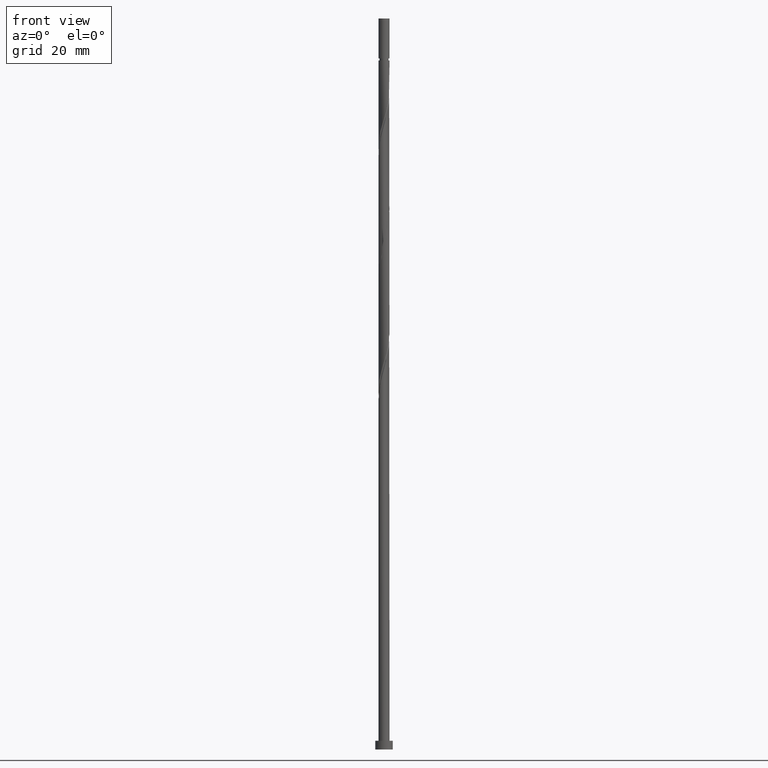
[diagram: clean part render]
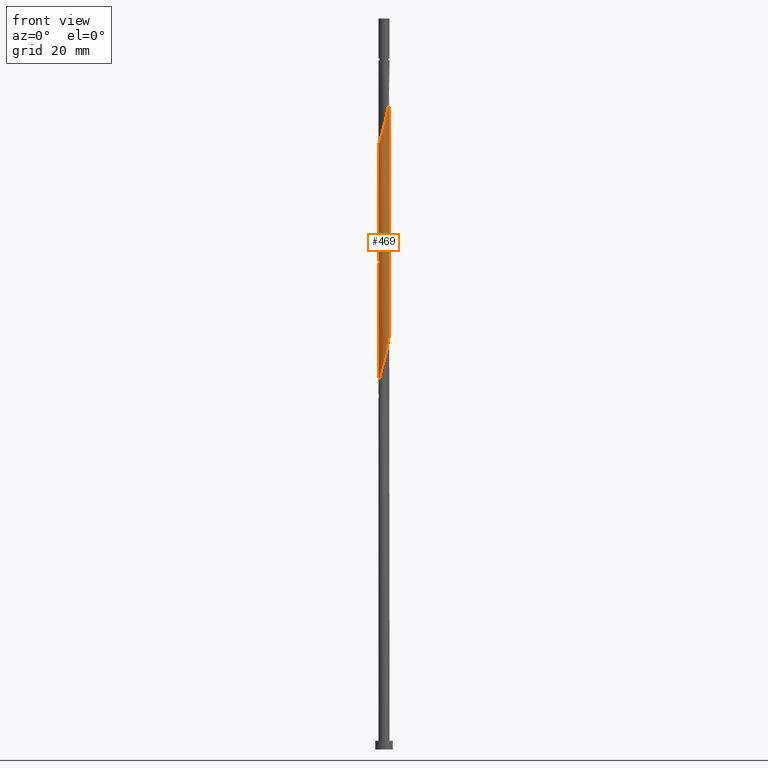
[diagram: same view with one face highlighted and labeled with its STEP entity id]
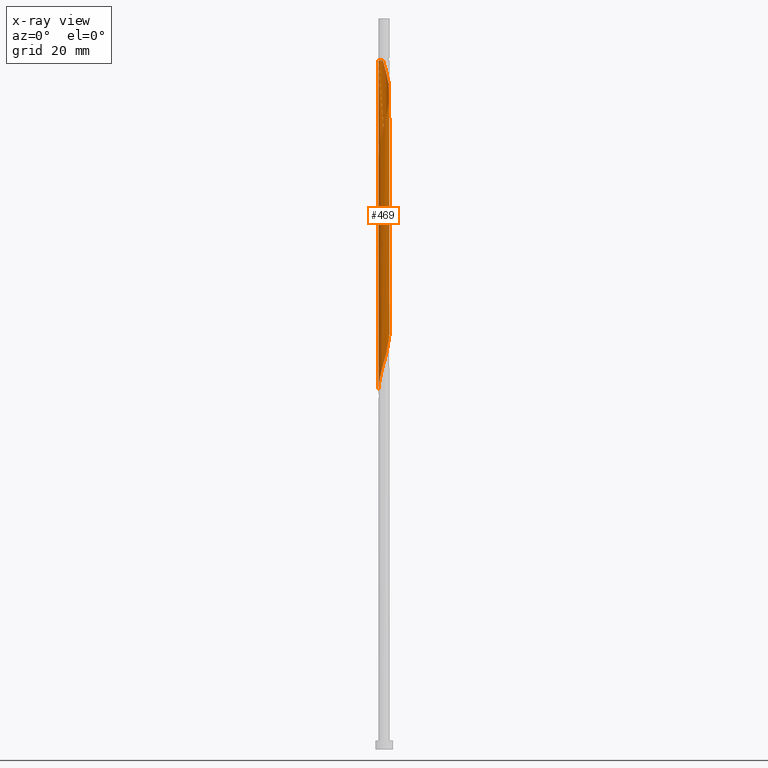
[diagram: x-ray of the same camera — body ghosted, the highlighted face saturated]
A machine part, front view. The second image highlights one B-rep face of the part: STEP entity #469.
The next image is the same camera in x-ray: the body ghosted, the highlighted face saturated — about 0% of this face is hidden behind the body in this view.
In plain terms, the highlighted cylindrical surface (bore or boss wall) has radius 0.95 mm, axis along (-0, -0, -1).
Its self-contained STEP definition (entity closure, byte-faithful):
#6 = CARTESIAN_POINT ( 'NONE',  ( -0.5311792622899487171, 0.8018655580792057869, 78.74737604286052317 ) ) ;
#14 = CARTESIAN_POINT ( 'NONE',  ( 0.9500000000000009548, 0.05412505057411599180, 92.62252290687140999 ) ) ;
#26 = CARTESIAN_POINT ( 'NONE',  ( -0.9310000000000014930, 0.1890476130502582175, 102.1848760428604947 ) ) ;
#31 = CARTESIAN_POINT ( 'NONE',  ( -0.8643142206951131001, -0.3942853381806154522, 62.60154270952718036 ) ) ;
#42 = CARTESIAN_POINT ( 'NONE',  ( -0.3942853381806156743, -0.8643142206951132112, 105.3098760428605374 ) ) ;
#48 = ORIENTED_EDGE ( 'NONE', *, *, #453, .F. ) ;
#74 =( BOUNDED_CURVE ( )  B_SPLINE_CURVE ( 2, ( #668, #1440, #433, #318, #550, #1085, #943, #1147, #42, #145, #477, #1377, #1385, #373, #920, #743, #468, #911, #502, #1368, #1057, #961, #357, #162, #801, #262, #382, #1256, #245, #1048, #827, #414, #582 ),
 .UNSPECIFIED., .F., .T. ) 
 B_SPLINE_CURVE_WITH_KNOTS ( ( 3, 2, 2, 2, 2, 2, 2, 2, 2, 2, 2, 2, 2, 2, 2, 2, 3 ),
 ( 0.5545322023138553602, 0.5625000000000000000, 0.5749999999999999556, 0.5875000000000000222, 0.5999999999999999778, 0.6125000000000000444, 0.6250000000000000000, 0.6374999999999999556, 0.6500000000000000222, 0.6624999999999999778, 0.6750000000000000444, 0.6875000000000000000, 0.6999999999999999556, 0.7125000000000000222, 0.7249999999999999778, 0.7375000000000000444, 0.7500000000000000000 ),
 .UNSPECIFIED. ) 
 CURVE ( )  GEOMETRIC_REPRESENTATION_ITEM ( )  RATIONAL_B_SPLINE_CURVE ( ( 0.9039174447099483922, 0.9019565955404780233, 0.9090909090909261581, 0.8978984914501423331, 0.9090909090909261581, 0.8978984914501423331, 0.9090909090909261581, 0.8978984914501423331, 0.9090909090909261581, 0.8978984914501423331, 0.9090909090909261581, 0.8978984914501423331, 0.9090909090909261581, 0.8978984914501423331, 0.9090909090909261581, 0.8978984914501423331, 0.9090909090909261581, 0.8978984914501423331, 0.9090909090909261581, 0.8978984914501423331, 0.9090909090909261581, 0.8978984914501423331, 0.9090909090909261581, 0.8978984914501423331, 0.9090909090909261581, 0.8978984914501423331, 0.9090909090909261581, 0.8978984914501423331, 0.9090909090909261581, 0.8978984914501423331, 0.9090909090909261581, 0.8978984914501423331, 0.9090909090909261581 ) ) 
 REPRESENTATION_ITEM ( '' )  );
#81 = EDGE_CURVE ( 'NONE', #728, #312, #327, .T. ) ;
#105 = CARTESIAN_POINT ( 'NONE',  ( 0.3942853381806154522, -0.8643142206951131001, 88.64320937619385177 ) ) ;
#107 = VECTOR ( 'NONE', #175, 1000.000000000000000 ) ;
#117 = CARTESIAN_POINT ( 'NONE',  ( -0.9609422003876559870, 0.04159169910811459647, 81.87237604286050896 ) ) ;
#120 = CARTESIAN_POINT ( 'NONE',  ( -0.9438525418493384223, -0.1078998574815838302, 82.39320937619389440 ) ) ;
#123 = VECTOR ( 'NONE', #816, 1000.000000000000000 ) ;
#142 = CARTESIAN_POINT ( 'NONE',  ( -0.9267628833110201914, -0.2573914140712821874, 62.08070937619381624 ) ) ;
#145 = CARTESIAN_POINT ( 'NONE',  ( -0.2573914140712822984, -0.9267628833110200803, 105.8307093761938518 ) ) ;
#146 = EDGE_CURVE ( 'NONE', #1086, #312, #74, .T. ) ;
#160 = CARTESIAN_POINT ( 'NONE',  ( 0.000000000000000000, 0.000000000000000000, 125.0000000000000000 ) ) ;
#162 = CARTESIAN_POINT ( 'NONE',  ( 0.9010577996123467770, 0.3365035269924014361, 113.1223760428605090 ) ) ;
#166 = CARTESIAN_POINT ( 'NONE',  ( 0.7529715833721342122, -0.5984760450967367973, 69.37237604286049475 ) ) ;
#175 = DIRECTION ( 'NONE',  ( -0.000000000000000000, -0.000000000000000000, -1.000000000000000000 ) ) ;
#193 = ORIENTED_EDGE ( 'NONE', *, *, #146, .F. ) ;
#211 = CARTESIAN_POINT ( 'NONE',  ( -0.8018655580792057869, -0.5311792622899486060, 83.95570937619383756 ) ) ;
#215 = LINE ( 'NONE', #455, #798 ) ;
#217 = EDGE_LOOP ( 'NONE', ( #303, #1340, #193, #435, #763, #1038, #951, #48 ) ) ;
#222 = CARTESIAN_POINT ( 'NONE',  ( 0.1890476130502582730, 0.9310000000000014930, 76.14320937619386598 ) ) ;
#242 = CARTESIAN_POINT ( 'NONE',  ( 0.9438525418493384223, 0.1078998574815837469, 71.97654270952720879 ) ) ;
#245 = CARTESIAN_POINT ( 'NONE',  ( 0.3942853381806157853, 0.8643142206951133222, 115.7265427095272088 ) ) ;
#250 = CARTESIAN_POINT ( 'NONE',  ( -0.8018655580792057869, -0.5311792622899486060, 63.12237604286050185 ) ) ;
#262 = CARTESIAN_POINT ( 'NONE',  ( 0.7529715833721343232, 0.5984760450967365752, 114.1640427095271662 ) ) ;
#268 = DIRECTION ( 'NONE',  ( -1.000000000000000000, 0.000000000000000000, 0.000000000000000000 ) ) ;
#274 = LINE ( 'NONE', #466, #123 ) ;
#303 = ORIENTED_EDGE ( 'NONE', *, *, #1061, .F. ) ;
#305 = CARTESIAN_POINT ( 'NONE',  ( 0.9499999999999999556, 1.163414459189985682E-16, 125.0000000000000000 ) ) ;
#312 = VERTEX_POINT ( 'NONE', #723 ) ;
#318 = CARTESIAN_POINT ( 'NONE',  ( -0.9010577996123467770, -0.3365035269924014916, 102.7057093761938518 ) ) ;
#322 = CARTESIAN_POINT ( 'NONE',  ( 0.5311792622899484950, -0.8018655580792058979, 89.16404270952715194 ) ) ;
#327 = CIRCLE ( 'NONE', #843, 0.9499999999999975131 ) ;
#329 = DIRECTION ( 'NONE',  ( -0.000000000000000000, -0.000000000000000000, -1.000000000000000000 ) ) ;
#336 = CARTESIAN_POINT ( 'NONE',  ( -0.2573914140712821874, 0.9267628833110201914, 77.70570937619383756 ) ) ;
#354 =( BOUNDED_CURVE ( )  B_SPLINE_CURVE ( 2, ( #903, #1014, #887, #772, #899, #465, #1357, #322, #105, #1224, #1109, #1350, #1129, #554, #656, #786, #567, #211, #998, #1338, #120, #117, #1230, #664, #1242, #1116, #560, #6, #1344, #336, #782, #1237, #222, #671, #1009, #714, #813, #1252, #908, #1052, #242, #806, #699, #603, #1382, #166, #610, #1364, #1152, #692, #1261, #1143, #378, #924, #364, #720, #1174, #250, #31, #142, #587, #1039, #916 ),
 .UNSPECIFIED., .F., .T. ) 
 B_SPLINE_CURVE_WITH_KNOTS ( ( 3, 2, 2, 2, 2, 2, 2, 2, 2, 2, 2, 2, 2, 2, 2, 2, 2, 2, 2, 2, 2, 2, 2, 2, 2, 2, 2, 2, 2, 2, 2, 3 ),
 ( 0.5545322023138548051, 0.5625000000000000000, 0.5749999999999999556, 0.5875000000000000222, 0.5999999999999999778, 0.6125000000000000444, 0.6250000000000000000, 0.6374999999999999556, 0.6500000000000000222, 0.6624999999999999778, 0.6750000000000000444, 0.6875000000000000000, 0.6999999999999999556, 0.7125000000000000222, 0.7249999999999999778, 0.7375000000000000444, 0.7500000000000000000, 0.7624999999999999556, 0.7750000000000000222, 0.7874999999999999778, 0.8000000000000000444, 0.8125000000000000000, 0.8249999999999999556, 0.8375000000000000222, 0.8499999999999999778, 0.8625000000000000444, 0.8750000000000000000, 0.8874999999999999556, 0.8999999999999999112, 0.9124999999999999778, 0.9250000000000000444, 0.9295322023138553602 ),
 .UNSPECIFIED. ) 
 CURVE ( )  GEOMETRIC_REPRESENTATION_ITEM ( )  RATIONAL_B_SPLINE_CURVE ( ( 0.9039174447099487253, 0.9019565955404774682, 0.9090909090909261581, 0.8978984914501423331, 0.9090909090909261581, 0.8978984914501423331, 0.9090909090909261581, 0.8978984914501423331, 0.9090909090909261581, 0.8978984914501423331, 0.9090909090909261581, 0.8978984914501423331, 0.9090909090909261581, 0.8978984914501423331, 0.9090909090909261581, 0.8978984914501423331, 0.9090909090909261581, 0.8978984914501423331, 0.9090909090909261581, 0.8978984914501423331, 0.9090909090909261581, 0.8978984914501423331, 0.9090909090909261581, 0.8978984914501423331, 0.9090909090909261581, 0.8978984914501423331, 0.9090909090909261581, 0.8978984914501423331, 0.9090909090909261581, 0.8978984914501423331, 0.9090909090909261581, 0.8978984914501423331, 0.9090909090909261581, 0.8978984914501423331, 0.9090909090909261581, 0.8978984914501423331, 0.9090909090909261581, 0.8978984914501423331, 0.9090909090909261581, 0.8978984914501423331, 0.9090909090909261581, 0.8978984914501423331, 0.9090909090909261581, 0.8978984914501423331, 0.9090909090909261581, 0.8978984914501423331, 0.9090909090909261581, 0.8978984914501423331, 0.9090909090909261581, 0.8978984914501423331, 0.9090909090909261581, 0.8978984914501423331, 0.9090909090909261581, 0.8978984914501423331, 0.9090909090909261581, 0.8978984914501423331, 0.9090909090909261581, 0.8978984914501423331, 0.9090909090909261581, 0.8978984914501423331, 0.9090909090909261581, 0.9050328050005904679, 0.9039174447099483922 ) ) 
 REPRESENTATION_ITEM ( '' )  );
#357 = CARTESIAN_POINT ( 'NONE',  ( 0.9310000000000014930, 0.1890476130502579399, 112.6015427095271946 ) ) ;
#364 = CARTESIAN_POINT ( 'NONE',  ( -0.4674897860445692555, -0.8270146914922408277, 64.68487604286050896 ) ) ;
#373 = CARTESIAN_POINT ( 'NONE',  ( 0.3365035269924014361, -0.9010577996123467770, 107.9140427095271662 ) ) ;
#378 = CARTESIAN_POINT ( 'NONE',  ( -0.1890476130502582175, -0.9310000000000014930, 65.72654270952715194 ) ) ;
#382 = CARTESIAN_POINT ( 'NONE',  ( 0.6420754228310419087, 0.7001708015879714031, 114.6848760428605232 ) ) ;
#414 = CARTESIAN_POINT ( 'NONE',  ( -0.04159169910811427728, 0.9609422003876559870, 117.2890427095271662 ) ) ;
#433 = CARTESIAN_POINT ( 'NONE',  ( -0.9310000000000014930, -0.1890476130502580510, 102.1848760428604947 ) ) ;
#435 = ORIENTED_EDGE ( 'NONE', *, *, #667, .T. ) ;
#453 = EDGE_CURVE ( 'NONE', #1367, #1093, #1266, .T. ) ;
#455 = CARTESIAN_POINT ( 'NONE',  ( -0.9499999999999999556, 0.000000000000000000, 125.0000000000000000 ) ) ;
#465 = CARTESIAN_POINT ( 'NONE',  ( 0.7529715833721342122, -0.5984760450967367973, 90.20570937619383756 ) ) ;
#466 = CARTESIAN_POINT ( 'NONE',  ( -0.9499999999999999556, 0.000000000000000000, 125.0000000000000000 ) ) ;
#468 = CARTESIAN_POINT ( 'NONE',  ( 0.7001708015879714031, -0.6420754228310416867, 109.4765427095271946 ) ) ;
#469 = ADVANCED_FACE ( 'NONE', ( #1175 ), #1090, .T. ) ;
#477 = CARTESIAN_POINT ( 'NONE',  ( -0.1078998574815840522, -0.9438525418493384223, 106.3515427095271946 ) ) ;
#483 = DIRECTION ( 'NONE',  ( -0.000000000000000000, -0.000000000000000000, -1.000000000000000000 ) ) ;
#491 = LINE ( 'NONE', #305, #107 ) ;
#502 = CARTESIAN_POINT ( 'NONE',  ( 0.8643142206951132112, -0.3942853381806156743, 110.5182093761938518 ) ) ;
#522 = CARTESIAN_POINT ( 'NONE',  ( 0.04159169910811453402, 0.9609422003876559870, 97.49737604286049475 ) ) ;
#533 = VERTEX_POINT ( 'NONE', #1145 ) ;
#549 = CARTESIAN_POINT ( 'NONE',  ( -0.9500000000000013989, 5.622413543702093402E-16, 102.8496784843307950 ) ) ;
#550 = CARTESIAN_POINT ( 'NONE',  ( -0.8270146914922410497, -0.4674897860445691444, 103.2265427095271946 ) ) ;
#554 = CARTESIAN_POINT ( 'NONE',  ( -0.3365035269924016581, -0.9010577996123465550, 86.03904270952716615 ) ) ;
#560 = CARTESIAN_POINT ( 'NONE',  ( -0.6420754228310416867, 0.7001708015879715141, 79.26820937619383756 ) ) ;
#567 = CARTESIAN_POINT ( 'NONE',  ( -0.7001708015879715141, -0.6420754228310415757, 84.47654270952720879 ) ) ;
#582 = CARTESIAN_POINT ( 'NONE',  ( -0.1890476130502573016, 0.9309999999999966080, 117.8098760428604947 ) ) ;
#583 = CARTESIAN_POINT ( 'NONE',  ( -0.7529715833721342122, 0.5984760450967366863, 100.6223760428604805 ) ) ;
#587 = CARTESIAN_POINT ( 'NONE',  ( -0.9438525418493384223, -0.1078998574815838302, 61.55987604286051607 ) ) ;
#597 = CARTESIAN_POINT ( 'NONE',  ( 0.5984760450967367973, 0.7529715833721342122, 95.41404270952715194 ) ) ;
#603 = CARTESIAN_POINT ( 'NONE',  ( 0.9010577996123465550, -0.3365035269924016581, 70.41404270952718036 ) ) ;
#607 = CARTESIAN_POINT ( 'NONE',  ( 0.9438525418493384223, 0.1078998574815837469, 92.80987604286052317 ) ) ;
#610 = CARTESIAN_POINT ( 'NONE',  ( 0.6420754228310415757, -0.7001708015879715141, 68.85154270952720879 ) ) ;
#656 = CARTESIAN_POINT ( 'NONE',  ( -0.4674897860445692555, -0.8270146914922408277, 85.51820937619385177 ) ) ;
#658 = CARTESIAN_POINT ( 'NONE',  ( 0.000000000000000000, 0.000000000000000000, 117.8098760428604947 ) ) ;
#663 = CARTESIAN_POINT ( 'NONE',  ( -0.3942853381806155633, 0.8643142206951131001, 99.05987604286053738 ) ) ;
#664 = CARTESIAN_POINT ( 'NONE',  ( -0.9010577996123466660, 0.3365035269924016026, 80.83070937619382335 ) ) ;
#667 = EDGE_CURVE ( 'NONE', #1086, #533, #274, .T. ) ;
#668 = CARTESIAN_POINT ( 'NONE',  ( -0.9500000000000013989, -4.347999807129618746E-16, 101.5200736013902372 ) ) ;
#671 = CARTESIAN_POINT ( 'NONE',  ( 0.3365035269924017136, 0.9010577996123465550, 75.62237604286049475 ) ) ;
#675 = CARTESIAN_POINT ( 'NONE',  ( 0.9500000000000016209, -1.146972362915227141E-15, 92.43301181766410934 ) ) ;
#680 = DIRECTION ( 'NONE',  ( -0.000000000000000000, -0.000000000000000000, -1.000000000000000000 ) ) ;
#692 = CARTESIAN_POINT ( 'NONE',  ( 0.2573914140712821319, -0.9267628833110201914, 67.28904270952716615 ) ) ;
#699 = CARTESIAN_POINT ( 'NONE',  ( 0.9310000000000014930, -0.1890476130502582452, 70.93487604286052317 ) ) ;
#714 = CARTESIAN_POINT ( 'NONE',  ( 0.5984760450967367973, 0.7529715833721342122, 74.58070937619386598 ) ) ;
#720 = CARTESIAN_POINT ( 'NONE',  ( -0.5984760450967367973, -0.7529715833721342122, 64.16404270952716615 ) ) ;
#723 = CARTESIAN_POINT ( 'NONE',  ( -0.1890476130502573016, 0.9309999999999966080, 117.8098760428604947 ) ) ;
#728 = VERTEX_POINT ( 'NONE', #825 ) ;
#743 = CARTESIAN_POINT ( 'NONE',  ( 0.5984760450967365752, -0.7529715833721342122, 108.9557093761938518 ) ) ;
#754 = CARTESIAN_POINT ( 'NONE',  ( 0.1890476130502582730, 0.9310000000000014930, 96.97654270952718036 ) ) ;
#763 = ORIENTED_EDGE ( 'NONE', *, *, #1103, .F. ) ;
#772 = CARTESIAN_POINT ( 'NONE',  ( 0.9010577996123465550, -0.3365035269924016581, 91.24737604286048054 ) ) ;
#776 = CARTESIAN_POINT ( 'NONE',  ( -0.9500000000000013989, -4.347999807129618746E-16, 101.5200736013902514 ) ) ;
#781 = CARTESIAN_POINT ( 'NONE',  ( -0.2573914140712821874, 0.9267628833110201914, 98.53904270952715194 ) ) ;
#782 = CARTESIAN_POINT ( 'NONE',  ( -0.1078998574815839273, 0.9438525418493383112, 77.18487604286053738 ) ) ;
#786 = CARTESIAN_POINT ( 'NONE',  ( -0.5984760450967367973, -0.7529715833721342122, 84.99737604286049475 ) ) ;
#796 = CARTESIAN_POINT ( 'NONE',  ( -0.5311792622899487171, 0.8018655580792057869, 99.58070937619382335 ) ) ;
#798 = VECTOR ( 'NONE', #329, 1000.000000000000000 ) ;
#801 = CARTESIAN_POINT ( 'NONE',  ( 0.8270146914922410497, 0.4674897860445690334, 113.6432093761938944 ) ) ;
#806 = CARTESIAN_POINT ( 'NONE',  ( 0.9609422003876559870, -0.04159169910811470056, 71.45570937619382335 ) ) ;
#813 = CARTESIAN_POINT ( 'NONE',  ( 0.7001708015879715141, 0.6420754228310415757, 74.05987604286053738 ) ) ;
#816 = DIRECTION ( 'NONE',  ( -0.000000000000000000, -0.000000000000000000, -1.000000000000000000 ) ) ;
#825 = CARTESIAN_POINT ( 'NONE',  ( -0.9499999999999975131, 0.000000000000000000, 117.8098760428604947 ) ) ;
#827 = CARTESIAN_POINT ( 'NONE',  ( 0.1078998574815841355, 0.9438525418493384223, 116.7682093761938660 ) ) ;
#843 = AXIS2_PLACEMENT_3D ( 'NONE', #658, #680, #1233 ) ;
#887 = CARTESIAN_POINT ( 'NONE',  ( 0.9310000000000014930, -0.1890476130502582452, 91.76820937619382335 ) ) ;
#899 = CARTESIAN_POINT ( 'NONE',  ( 0.8270146914922408277, -0.4674897860445692555, 90.72654270952718036 ) ) ;
#903 = CARTESIAN_POINT ( 'NONE',  ( 0.9500000000000016209, -1.146972362915227141E-15, 92.43301181766409513 ) ) ;
#908 = CARTESIAN_POINT ( 'NONE',  ( 0.8643142206951132112, 0.3942853381806152302, 73.01820937619382335 ) ) ;
#911 = CARTESIAN_POINT ( 'NONE',  ( 0.8018655580792057869, -0.5311792622899488281, 109.9973760428604947 ) ) ;
#912 = CARTESIAN_POINT ( 'NONE',  ( -0.9010577996123466660, 0.3365035269924016026, 101.6640427095271662 ) ) ;
#916 = CARTESIAN_POINT ( 'NONE',  ( -0.9500000000000016209, 1.049517194824390742E-15, 61.18301181766409513 ) ) ;
#920 = CARTESIAN_POINT ( 'NONE',  ( 0.4674897860445690889, -0.8270146914922410497, 108.4348760428605516 ) ) ;
#924 = CARTESIAN_POINT ( 'NONE',  ( -0.3365035269924016581, -0.9010577996123465550, 65.20570937619382335 ) ) ;
#943 = CARTESIAN_POINT ( 'NONE',  ( -0.6420754228310416867, -0.7001708015879714031, 104.2682093761938518 ) ) ;
#951 = ORIENTED_EDGE ( 'NONE', *, *, #971, .T. ) ;
#960 = CARTESIAN_POINT ( 'NONE',  ( -0.9500000000000013989, 5.622413543702093402E-16, 102.8496784843307807 ) ) ;
#961 = CARTESIAN_POINT ( 'NONE',  ( 0.9609422003876559870, 0.04159169910811433279, 112.0807093761938233 ) ) ;
#971 = EDGE_CURVE ( 'NONE', #986, #1093, #491, .T. ) ;
#973 = CARTESIAN_POINT ( 'NONE',  ( 0.9267628833110203024, 0.2573914140712820764, 93.33070937619383756 ) ) ;
#981 = CARTESIAN_POINT ( 'NONE',  ( 0.9499999999999999556, 1.163414459189985682E-16, 117.8098760428604947 ) ) ;
#986 = VERTEX_POINT ( 'NONE', #981 ) ;
#998 = CARTESIAN_POINT ( 'NONE',  ( -0.8643142206951131001, -0.3942853381806154522, 83.43487604286053738 ) ) ;
#1008 = CARTESIAN_POINT ( 'NONE',  ( -0.1078998574815839273, 0.9438525418493383112, 98.01820937619388019 ) ) ;
#1009 = CARTESIAN_POINT ( 'NONE',  ( 0.4674897860445693110, 0.8270146914922408277, 75.10154270952715194 ) ) ;
#1014 = CARTESIAN_POINT ( 'NONE',  ( 0.9500000000000022871, -0.09547859244962067504, 92.09870724225625338 ) ) ;
#1023 = CARTESIAN_POINT ( 'NONE',  ( -0.9500000000000015099, 0.09547859244962560166, 102.5153739089229248 ) ) ;
#1033 = CARTESIAN_POINT ( 'NONE',  ( -0.6420754228310416867, 0.7001708015879715141, 100.1015427095272088 ) ) ;
#1038 = ORIENTED_EDGE ( 'NONE', *, *, #971, .F. ) ;
#1039 = CARTESIAN_POINT ( 'NONE',  ( -0.9500000000000016209, -0.05412505057410946230, 61.37252290687136735 ) ) ;
#1048 = CARTESIAN_POINT ( 'NONE',  ( 0.2573914140712823539, 0.9267628833110200803, 116.2473760428605090 ) ) ;
#1052 = CARTESIAN_POINT ( 'NONE',  ( 0.9267628833110203024, 0.2573914140712820764, 72.49737604286049475 ) ) ;
#1057 = CARTESIAN_POINT ( 'NONE',  ( 0.9438525418493384223, -0.1078998574815840522, 111.5598760428605232 ) ) ;
#1061 = EDGE_CURVE ( 'NONE', #728, #1367, #215, .T. ) ;
#1085 = CARTESIAN_POINT ( 'NONE',  ( -0.7529715833721342122, -0.5984760450967366863, 103.7473760428604805 ) ) ;
#1086 = VERTEX_POINT ( 'NONE', #776 ) ;
#1090 = CYLINDRICAL_SURFACE ( 'NONE', #1346, 0.9499999999999999556 ) ;
#1093 = VERTEX_POINT ( 'NONE', #675 ) ;
#1103 = EDGE_CURVE ( 'NONE', #1093, #533, #354, .T. ) ;
#1109 = CARTESIAN_POINT ( 'NONE',  ( 0.1078998574815837885, -0.9438525418493384223, 87.60154270952718036 ) ) ;
#1116 = CARTESIAN_POINT ( 'NONE',  ( -0.7529715833721342122, 0.5984760450967366863, 79.78904270952715194 ) ) ;
#1125 = CARTESIAN_POINT ( 'NONE',  ( 0.3365035269924017136, 0.9010577996123465550, 96.45570937619380913 ) ) ;
#1129 = CARTESIAN_POINT ( 'NONE',  ( -0.1890476130502582175, -0.9310000000000014930, 86.55987604286052317 ) ) ;
#1143 = CARTESIAN_POINT ( 'NONE',  ( -0.04159169910811467280, -0.9609422003876559870, 66.24737604286050896 ) ) ;
#1145 = CARTESIAN_POINT ( 'NONE',  ( -0.9500000000000016209, 1.049517194824390742E-15, 61.18301181766409513 ) ) ;
#1147 = CARTESIAN_POINT ( 'NONE',  ( -0.5311792622899487171, -0.8018655580792055648, 104.7890427095271519 ) ) ;
#1148 = CARTESIAN_POINT ( 'NONE',  ( -0.8270146914922408277, 0.4674897860445692555, 101.1432093761938802 ) ) ;
#1152 = CARTESIAN_POINT ( 'NONE',  ( 0.3942853381806154522, -0.8643142206951131001, 67.80987604286050896 ) ) ;
#1174 = CARTESIAN_POINT ( 'NONE',  ( -0.7001708015879715141, -0.6420754228310415757, 63.64320937619383045 ) ) ;
#1175 = FACE_OUTER_BOUND ( 'NONE', #217, .T. ) ;
#1224 = CARTESIAN_POINT ( 'NONE',  ( 0.2573914140712821319, -0.9267628833110201914, 88.12237604286048054 ) ) ;
#1230 = CARTESIAN_POINT ( 'NONE',  ( -0.9310000000000014930, 0.1890476130502582175, 81.35154270952716615 ) ) ;
#1233 = DIRECTION ( 'NONE',  ( -1.000000000000000000, 0.000000000000000000, 0.000000000000000000 ) ) ;
#1237 = CARTESIAN_POINT ( 'NONE',  ( 0.04159169910811453402, 0.9609422003876559870, 76.66404270952716615 ) ) ;
#1242 = CARTESIAN_POINT ( 'NONE',  ( -0.8270146914922408277, 0.4674897860445692555, 80.30987604286050896 ) ) ;
#1252 = CARTESIAN_POINT ( 'NONE',  ( 0.8018655580792058979, 0.5311792622899484950, 73.53904270952712352 ) ) ;
#1256 = CARTESIAN_POINT ( 'NONE',  ( 0.5311792622899488281, 0.8018655580792055648, 115.2057093761938091 ) ) ;
#1261 = CARTESIAN_POINT ( 'NONE',  ( 0.1078998574815837885, -0.9438525418493384223, 66.76820937619386598 ) ) ;
#1266 =( BOUNDED_CURVE ( )  B_SPLINE_CURVE ( 2, ( #549, #1023, #26, #912, #1148, #583, #1033, #796, #663, #781, #1008, #522, #754, #1125, #1352, #597, #1288, #1452, #1336, #973, #607, #14, #1354 ),
 .UNSPECIFIED., .F., .T. ) 
 B_SPLINE_CURVE_WITH_KNOTS ( ( 3, 2, 2, 2, 2, 2, 2, 2, 2, 2, 2, 3 ),
 ( 0.4295322023138551937, 0.4375000000000000000, 0.4500000000000000111, 0.4625000000000000222, 0.4749999999999999778, 0.4874999999999999889, 0.5000000000000000000, 0.5124999999999999556, 0.5250000000000000222, 0.5374999999999999778, 0.5500000000000000444, 0.5545322023138548051 ),
 .UNSPECIFIED. ) 
 CURVE ( )  GEOMETRIC_REPRESENTATION_ITEM ( )  RATIONAL_B_SPLINE_CURVE ( ( 0.9039174447099485032, 0.9019565955404778013, 0.9090909090909261581, 0.8978984914501423331, 0.9090909090909261581, 0.8978984914501423331, 0.9090909090909261581, 0.8978984914501423331, 0.9090909090909261581, 0.8978984914501423331, 0.9090909090909261581, 0.8978984914501423331, 0.9090909090909261581, 0.8978984914501423331, 0.9090909090909261581, 0.8978984914501423331, 0.9090909090909261581, 0.8978984914501423331, 0.9090909090909261581, 0.8978984914501423331, 0.9090909090909261581, 0.9050328050005910230, 0.9039174447099487253 ) ) 
 REPRESENTATION_ITEM ( '' )  );
#1288 = CARTESIAN_POINT ( 'NONE',  ( 0.7001708015879715141, 0.6420754228310415757, 94.89320937619388019 ) ) ;
#1336 = CARTESIAN_POINT ( 'NONE',  ( 0.8643142206951132112, 0.3942853381806152302, 93.85154270952719457 ) ) ;
#1338 = CARTESIAN_POINT ( 'NONE',  ( -0.9267628833110201914, -0.2573914140712821874, 82.91404270952716615 ) ) ;
#1340 = ORIENTED_EDGE ( 'NONE', *, *, #81, .T. ) ;
#1344 = CARTESIAN_POINT ( 'NONE',  ( -0.3942853381806155633, 0.8643142206951131001, 78.22654270952718036 ) ) ;
#1346 = AXIS2_PLACEMENT_3D ( 'NONE', #160, #483, #268 ) ;
#1350 = CARTESIAN_POINT ( 'NONE',  ( -0.04159169910811467280, -0.9609422003876559870, 87.08070937619382335 ) ) ;
#1352 = CARTESIAN_POINT ( 'NONE',  ( 0.4674897860445693110, 0.8270146914922408277, 95.93487604286050896 ) ) ;
#1354 = CARTESIAN_POINT ( 'NONE',  ( 0.9500000000000016209, -1.146972362915227141E-15, 92.43301181766409513 ) ) ;
#1357 = CARTESIAN_POINT ( 'NONE',  ( 0.6420754228310415757, -0.7001708015879715141, 89.68487604286053738 ) ) ;
#1364 = CARTESIAN_POINT ( 'NONE',  ( 0.5311792622899484950, -0.8018655580792058979, 68.33070937619382335 ) ) ;
#1367 = VERTEX_POINT ( 'NONE', #960 ) ;
#1368 = CARTESIAN_POINT ( 'NONE',  ( 0.9267628833110200803, -0.2573914140712823539, 111.0390427095271519 ) ) ;
#1377 = CARTESIAN_POINT ( 'NONE',  ( 0.04159169910811438831, -0.9609422003876559870, 106.8723760428604663 ) ) ;
#1382 = CARTESIAN_POINT ( 'NONE',  ( 0.8270146914922408277, -0.4674897860445692555, 69.89320937619385177 ) ) ;
#1385 = CARTESIAN_POINT ( 'NONE',  ( 0.1890476130502579954, -0.9310000000000014930, 107.3932093761938518 ) ) ;
#1440 = CARTESIAN_POINT ( 'NONE',  ( -0.9500000000000008438, -0.09547859244962701719, 101.8543781767980647 ) ) ;
#1452 = CARTESIAN_POINT ( 'NONE',  ( 0.8018655580792058979, 0.5311792622899484950, 94.37237604286049475 ) ) ;